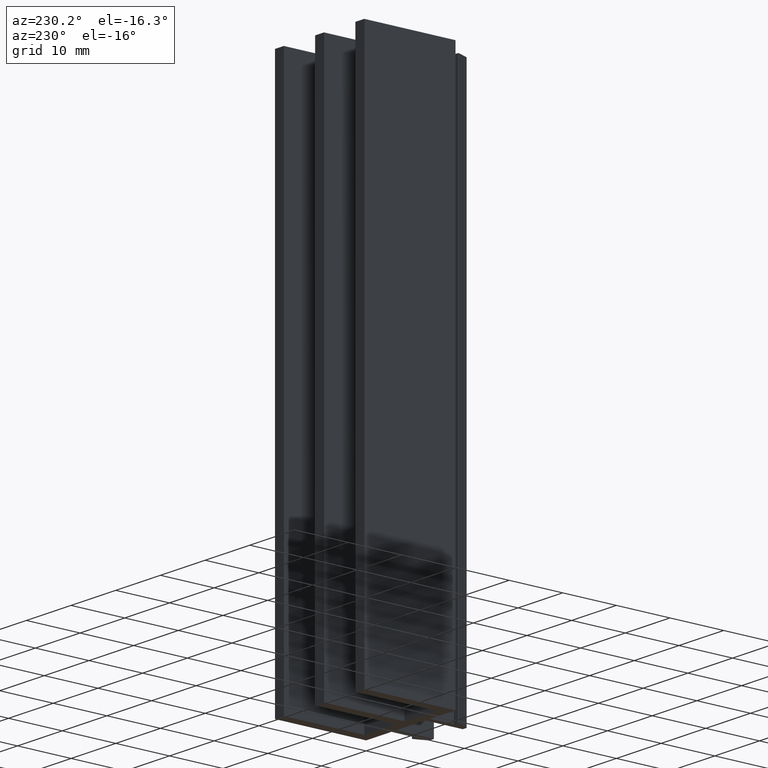
[diagram: clean part render]
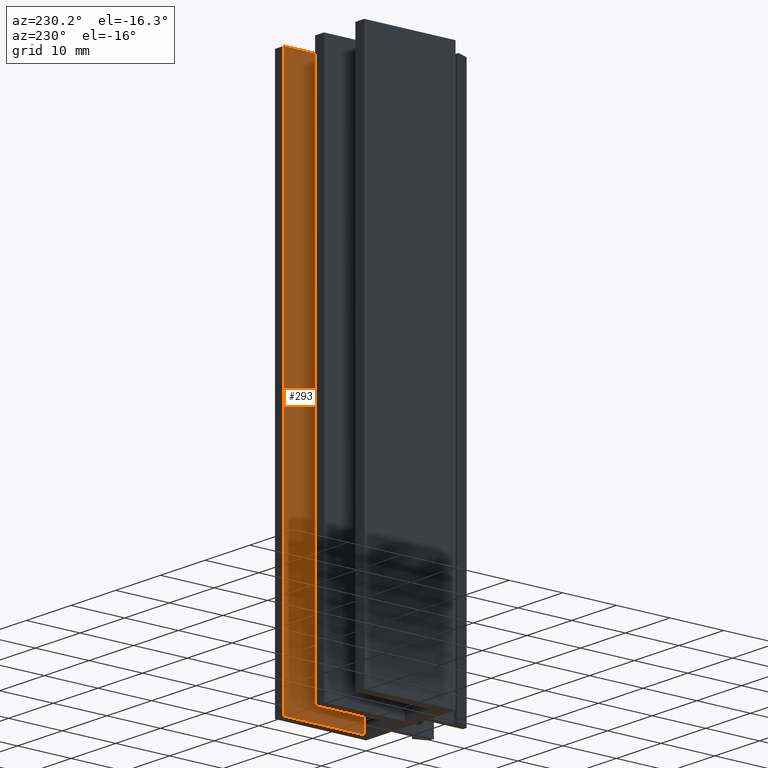
[diagram: same view with one face highlighted and labeled with its STEP entity id]
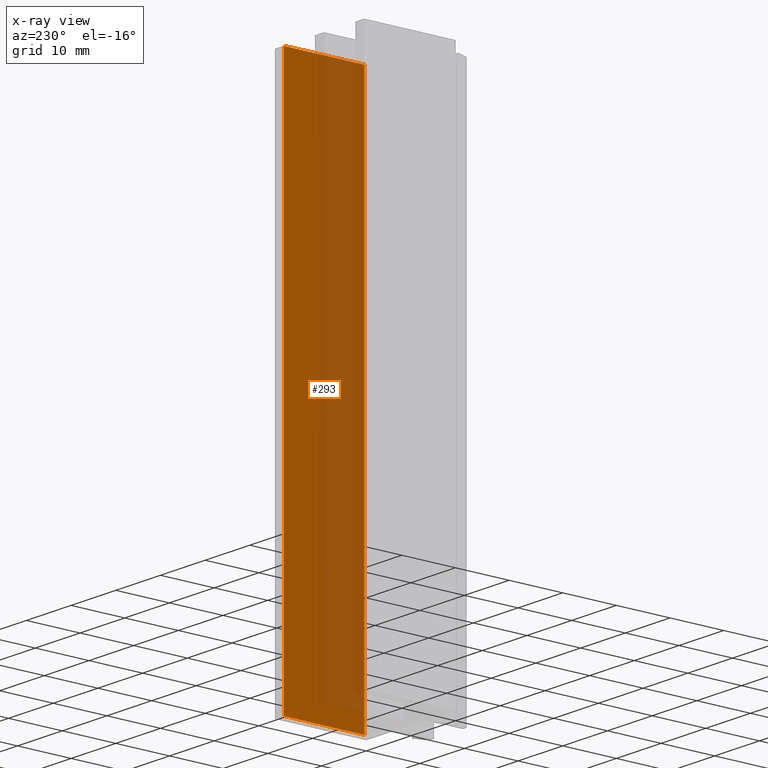
[diagram: x-ray of the same camera — body ghosted, the highlighted face saturated]
A machine part, auxiliary view. The second image highlights one B-rep face of the part: STEP entity #293.
The next image is the same camera in x-ray: the body ghosted, the highlighted face saturated — about 53% of this face is hidden behind the body in this view.
In plain terms, the highlighted planar face has unit normal (-1, 0, 0).
Its self-contained STEP definition (entity closure, byte-faithful):
#237=CARTESIAN_POINT('',(-1.999999999992042,16.999999999932015,0.0));
#238=VERTEX_POINT('',#237);
#245=CARTESIAN_POINT('',(-1.999999999992042,16.999999999932015,100.0));
#246=VERTEX_POINT('',#245);
#247=CARTESIAN_POINT('',(-1.999999999992042,16.999999999932015,0.0));
#248=DIRECTION('',(0.0,0.0,1.0));
#249=VECTOR('',#248,100.0);
#250=LINE('',#247,#249);
#251=EDGE_CURVE('',#238,#246,#250,.T.);
#263=CARTESIAN_POINT('',(-1.999999999992042,16.999999999932015,0.0));
#264=DIRECTION('',(-1.0,0.0,0.0));
#265=DIRECTION('',(0.0,-1.0,0.0));
#266=AXIS2_PLACEMENT_3D('',#263,#264,#265);
#267=PLANE('',#266);
#268=CARTESIAN_POINT('',(-1.999999999992042,1.999999999992042,0.0));
#269=VERTEX_POINT('',#268);
#270=CARTESIAN_POINT('',(-1.999999999992042,16.999999999932044,0.0));
#271=DIRECTION('',(0.0,-1.0,0.0));
#272=VECTOR('',#271,14.999999999940002);
#273=LINE('',#270,#272);
#274=EDGE_CURVE('',#238,#269,#273,.T.);
#275=ORIENTED_EDGE('',*,*,#274,.T.);
#276=CARTESIAN_POINT('',(-1.999999999992042,1.999999999992042,100.0));
#277=VERTEX_POINT('',#276);
#278=CARTESIAN_POINT('',(-1.999999999992042,1.999999999992042,0.0));
#279=DIRECTION('',(0.0,0.0,1.0));
#280=VECTOR('',#279,100.0);
#281=LINE('',#278,#280);
#282=EDGE_CURVE('',#269,#277,#281,.T.);
#283=ORIENTED_EDGE('',*,*,#282,.T.);
#284=CARTESIAN_POINT('',(-1.999999999992042,16.999999999932044,100.0));
#285=DIRECTION('',(0.0,-1.0,0.0));
#286=VECTOR('',#285,14.999999999940002);
#287=LINE('',#284,#286);
#288=EDGE_CURVE('',#246,#277,#287,.T.);
#289=ORIENTED_EDGE('',*,*,#288,.F.);
#290=ORIENTED_EDGE('',*,*,#251,.F.);
#291=EDGE_LOOP('',(#275,#283,#289,#290));
#292=FACE_OUTER_BOUND('',#291,.T.);
#293=ADVANCED_FACE('',(#292),#267,.T.);